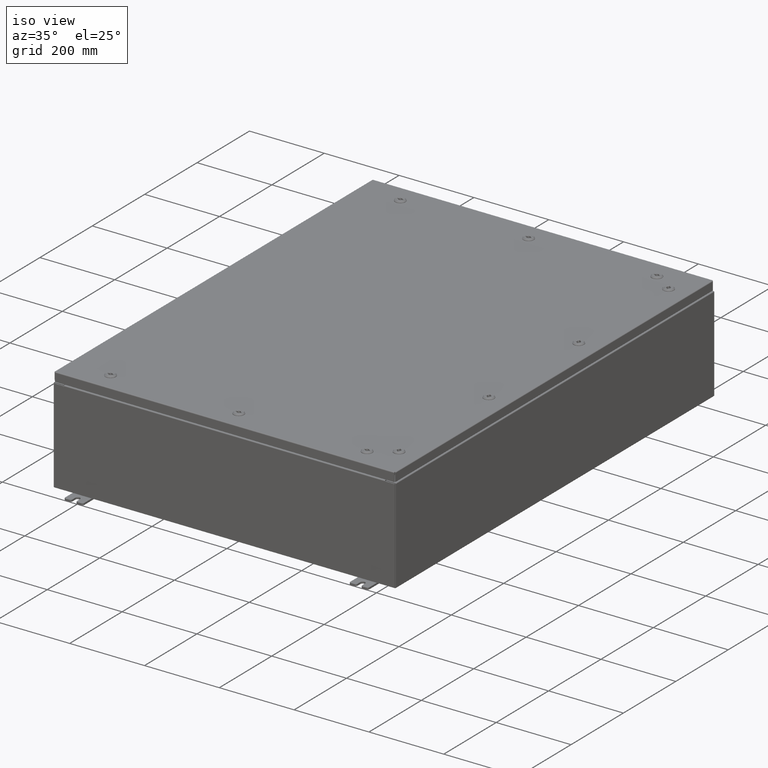
[diagram: clean part render]
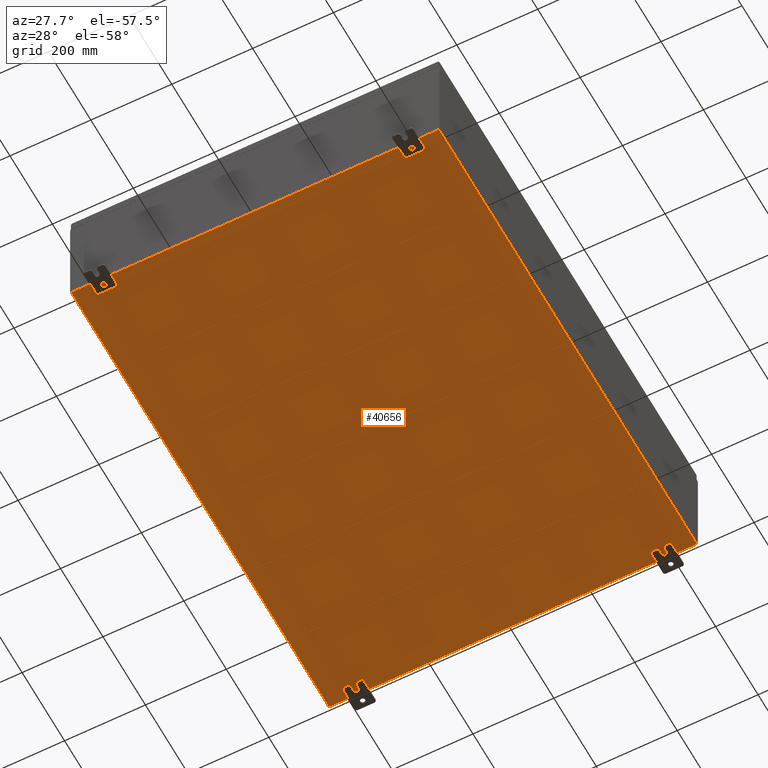
[diagram: tour spotlight — one face highlighted and labeled with its STEP entity id]
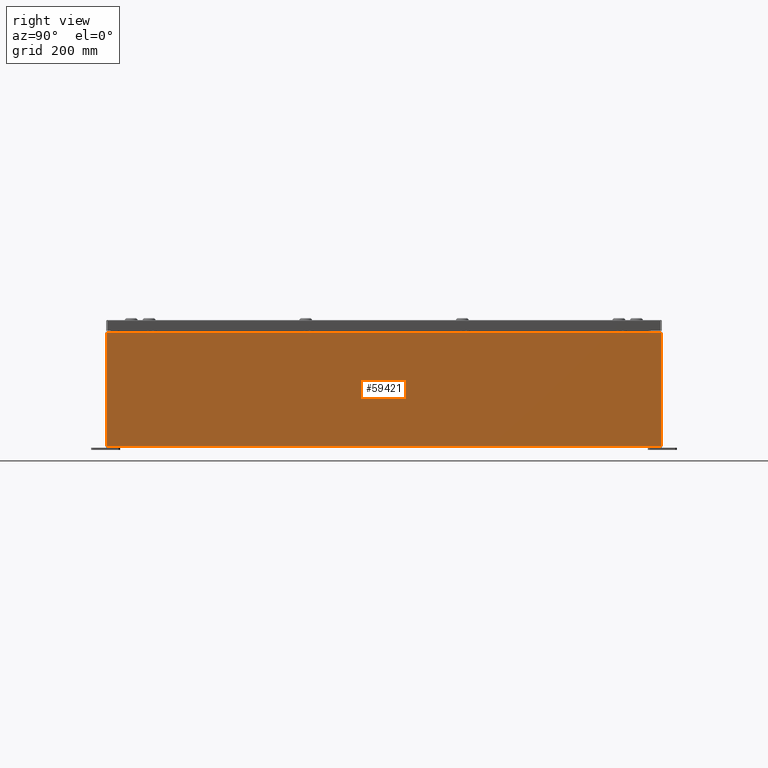
[diagram: tour spotlight — one face highlighted and labeled with its STEP entity id]
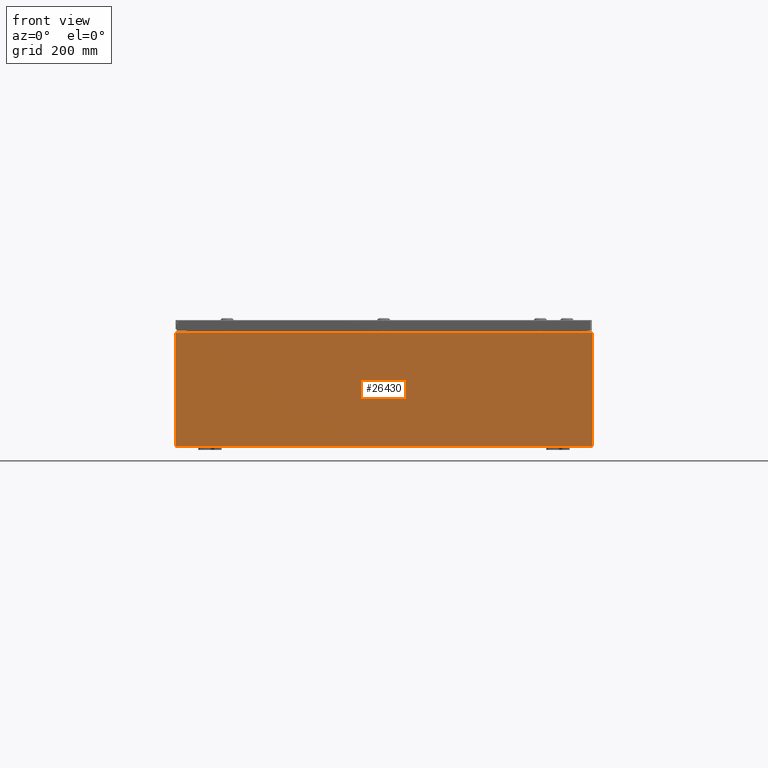
[diagram: tour spotlight — one face highlighted and labeled with its STEP entity id]
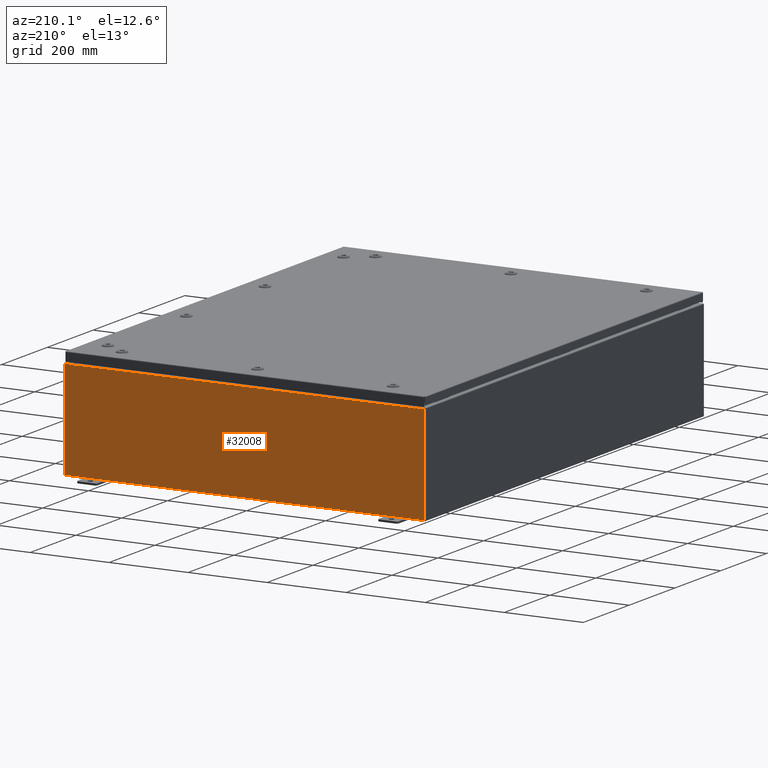
[diagram: tour spotlight — one face highlighted and labeled with its STEP entity id]
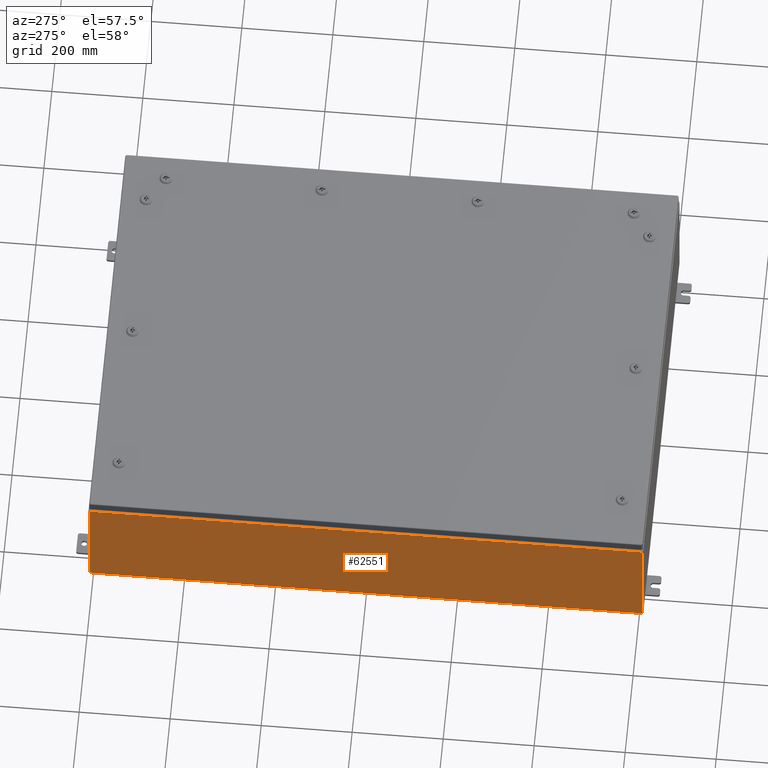
[diagram: tour spotlight — one face highlighted and labeled with its STEP entity id]
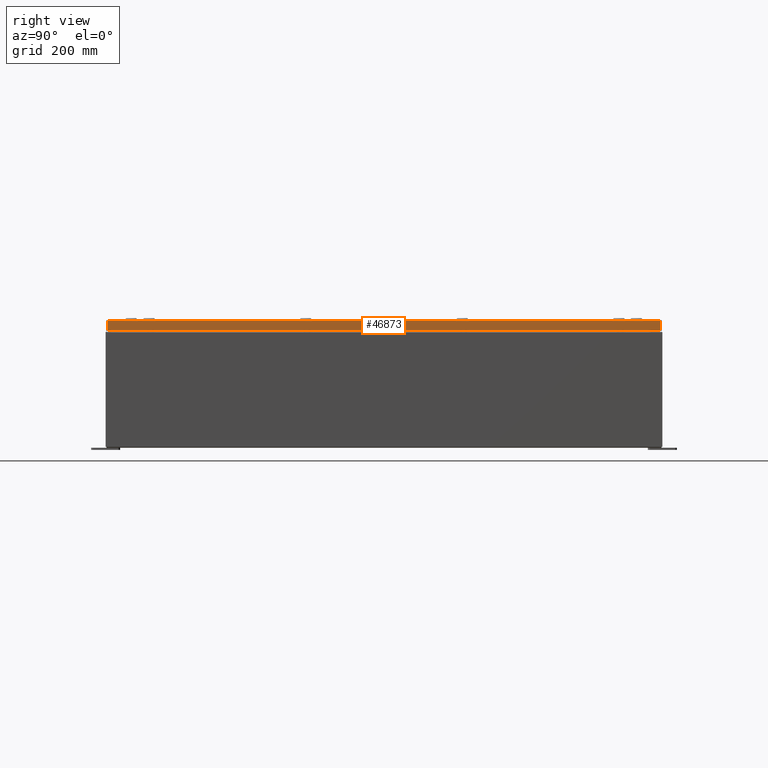
[diagram: tour spotlight — one face highlighted and labeled with its STEP entity id]
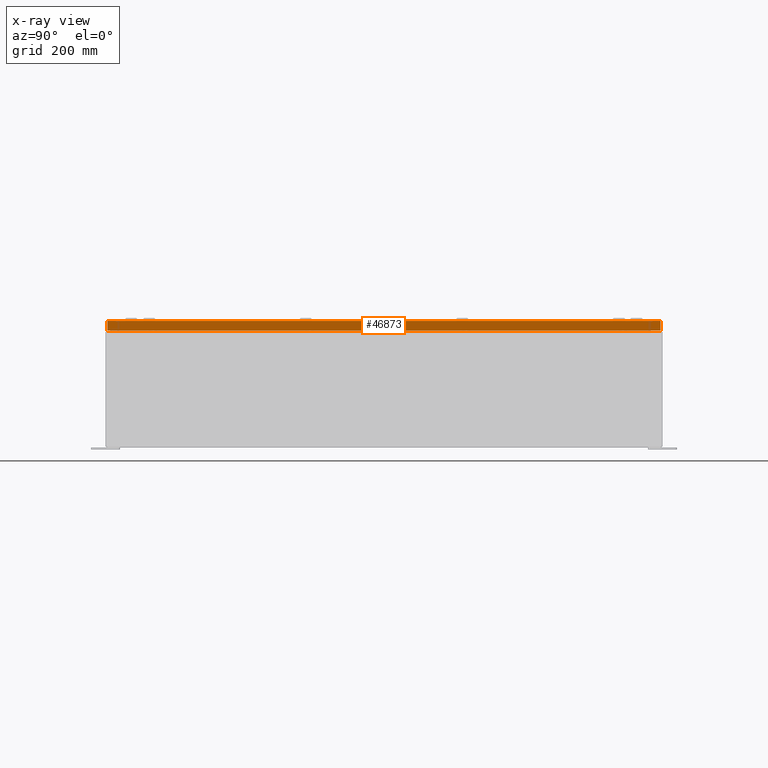
[diagram: x-ray of the same camera — body ghosted, this tour face saturated]
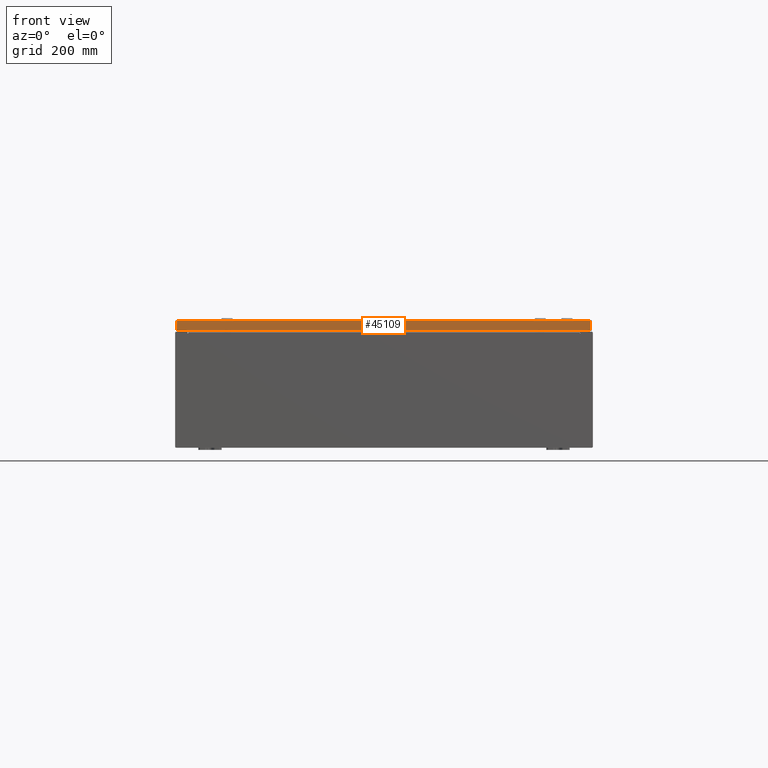
[diagram: tour spotlight — one face highlighted and labeled with its STEP entity id]
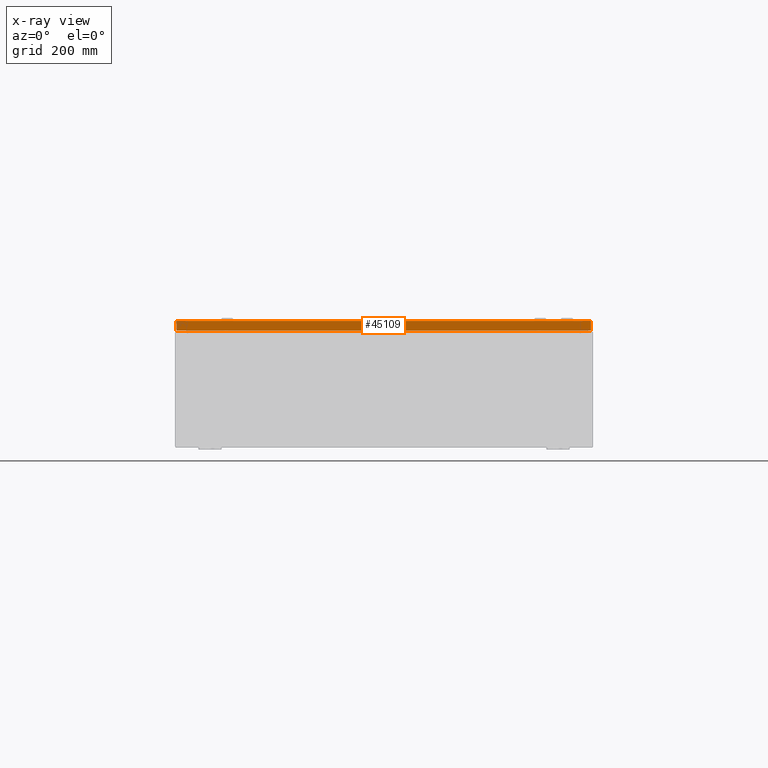
[diagram: x-ray of the same camera — body ghosted, this tour face saturated]
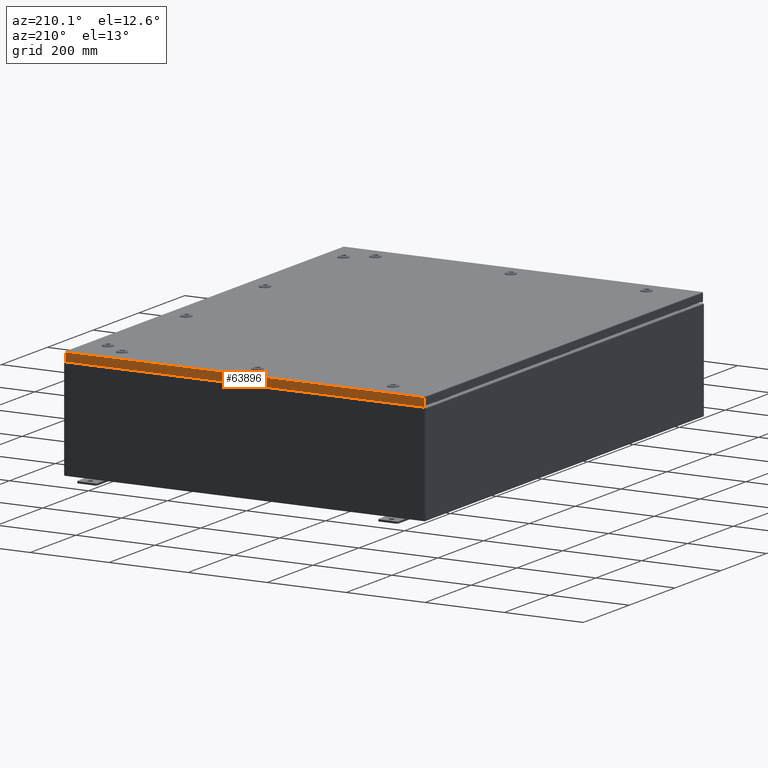
[diagram: tour spotlight — one face highlighted and labeled with its STEP entity id]
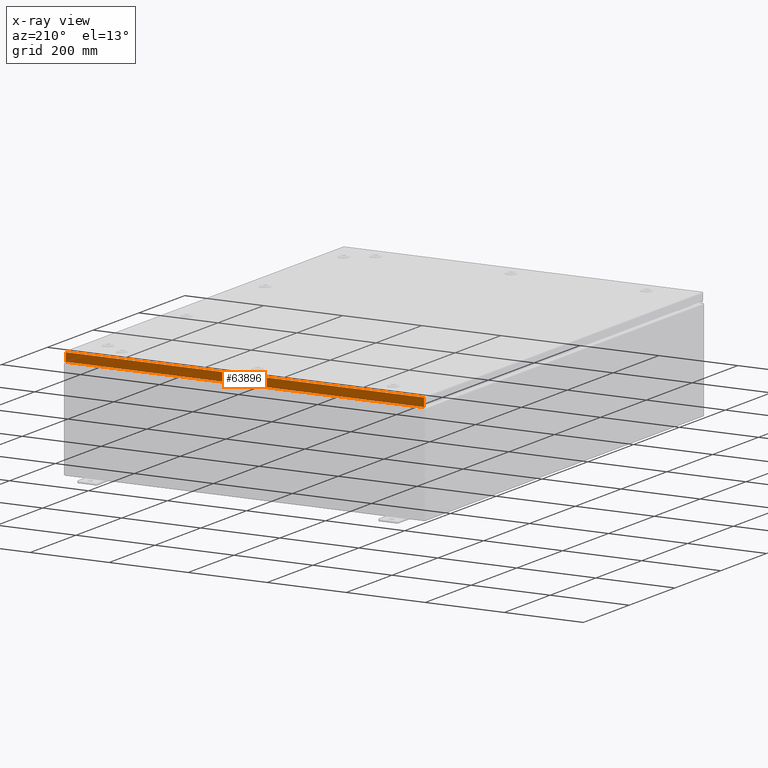
[diagram: x-ray of the same camera — body ghosted, this tour face saturated]
A machine part: a face-by-face anatomy tour. The part has 9060 B-rep faces; the first image is the clean iso view, then the 8 largest visible faces are spotlighted one at a time (largest first), each with its STEP entity span.

Face 1 — auxiliary view, entity #40656. In plain terms, the highlighted planar face has unit normal (0, 0, -1).
Definition (entity closure, byte-faithful):
#1111 = VECTOR ( 'NONE', #6582, 39.37007874015748100 ) ;
#1706 = FACE_OUTER_BOUND ( 'NONE', #14496, .T. ) ;
#3148 = LINE ( 'NONE', #16396, #29793 ) ;
#5612 = CARTESIAN_POINT ( 'NONE',  ( 17.91229999999999500, 23.92529999999998900, -0.07469999999999688000 ) ) ;
#5838 = DIRECTION ( 'NONE',  ( -1.000000000000000000, 0.0000000000000000000, -0.0000000000000000000 ) ) ;
#6582 = DIRECTION ( 'NONE',  ( -0.0000000000000000000, 1.000000000000000000, -0.0000000000000000000 ) ) ;
#7980 = CARTESIAN_POINT ( 'NONE',  ( 17.91229999999999500, -23.92530000000000000, -0.07470000000000000300 ) ) ;
#8897 = VERTEX_POINT ( 'NONE', #49097 ) ;
#10481 = CARTESIAN_POINT ( 'NONE',  ( -18.00000000000000400, 23.92530000000000000, -0.07470000000000000300 ) ) ;
#11040 = DIRECTION ( 'NONE',  ( 1.000000000000000000, 1.214154663850783700E-016, 0.0000000000000000000 ) ) ;
#14340 = EDGE_CURVE ( 'NONE', #47152, #51415, #43530, .T. ) ;
#14496 = EDGE_LOOP ( 'NONE', ( #36754, #41674, #58539, #53055 ) ) ;
#16396 = CARTESIAN_POINT ( 'NONE',  ( -18.00000000000000400, -23.92530000000000400, -0.07470000000000000300 ) ) ;
#26972 = CARTESIAN_POINT ( 'NONE',  ( 0.0000000000000000000, 0.0000000000000000000, -0.07470000000000000300 ) ) ;
#29550 = LINE ( 'NONE', #10481, #56057 ) ;
#29793 = VECTOR ( 'NONE', #11040, 39.37007874015748100 ) ;
#36754 = ORIENTED_EDGE ( 'NONE', *, *, #40506, .F. ) ;
#37684 = DIRECTION ( 'NONE',  ( 0.0000000000000000000, 0.0000000000000000000, -1.000000000000000000 ) ) ;
#38092 = VECTOR ( 'NONE', #42801, 39.37007874015748100 ) ;
#40506 = EDGE_CURVE ( 'NONE', #47152, #48297, #3148, .T. ) ;
#40656 = ADVANCED_FACE ( 'NONE', ( #1706 ), #42789, .T. ) ;
#41674 = ORIENTED_EDGE ( 'NONE', *, *, #14340, .T. ) ;
#41704 = EDGE_CURVE ( 'NONE', #8897, #48297, #52164, .T. ) ;
#42323 = DIRECTION ( 'NONE',  ( -1.000000000000000000, -0.0000000000000000000, -0.0000000000000000000 ) ) ;
#42789 = PLANE ( 'NONE',  #51721 ) ;
#42801 = DIRECTION ( 'NONE',  ( -0.0000000000000000000, -1.000000000000000000, -8.208677865577646300E-017 ) ) ;
#43167 = CARTESIAN_POINT ( 'NONE',  ( -17.91230000000000500, 23.92529999999998900, -0.07470000000000000300 ) ) ;
#43530 = LINE ( 'NONE', #43762, #1111 ) ;
#43762 = CARTESIAN_POINT ( 'NONE',  ( -17.91230000000000500, -23.92529999999998900, -0.07469999999999994700 ) ) ;
#46683 = CARTESIAN_POINT ( 'NONE',  ( -17.91230000000000500, -23.92529999999998600, -0.07469999999999994700 ) ) ;
#47152 = VERTEX_POINT ( 'NONE', #46683 ) ;
#48297 = VERTEX_POINT ( 'NONE', #7980 ) ;
#49097 = CARTESIAN_POINT ( 'NONE',  ( 17.91229999999999500, 23.92529999999998600, -0.07469999999999688000 ) ) ;
#51415 = VERTEX_POINT ( 'NONE', #43167 ) ;
#51721 = AXIS2_PLACEMENT_3D ( 'NONE', #26972, #37684, #5838 ) ;
#52164 = LINE ( 'NONE', #5612, #38092 ) ;
#53055 = ORIENTED_EDGE ( 'NONE', *, *, #41704, .T. ) ;
#56057 = VECTOR ( 'NONE', #42323, 39.37007874015748100 ) ;
#58539 = ORIENTED_EDGE ( 'NONE', *, *, #64222, .F. ) ;
#64222 = EDGE_CURVE ( 'NONE', #8897, #51415, #29550, .T. ) ;

Face 2 — right view, entity #59421. In plain terms, the highlighted planar face has unit normal (-1, 0, 0).
Definition (entity closure, byte-faithful):
#432 = CARTESIAN_POINT ( 'NONE',  ( 17.99999999999999600, 23.92529999999998900, -6.367630515150754200E-014 ) ) ;
#446 = CARTESIAN_POINT ( 'NONE',  ( 18.00000000000003200, 23.92529999999998900, 9.837599999999994800 ) ) ;
#5017 = DIRECTION ( 'NONE',  ( -1.000000000000000000, 0.0000000000000000000, 3.523082860860887800E-015 ) ) ;
#5782 = ORIENTED_EDGE ( 'NONE', *, *, #22244, .F. ) ;
#5786 = DIRECTION ( 'NONE',  ( 3.523082860860888200E-015, 0.0000000000000000000, 1.000000000000000000 ) ) ;
#5803 = DIRECTION ( 'NONE',  ( -0.0000000000000000000, -1.000000000000000000, -0.0000000000000000000 ) ) ;
#8133 = CARTESIAN_POINT ( 'NONE',  ( 17.99999999999999600, -23.92529999999998900, -6.367630515150754200E-014 ) ) ;
#9129 = EDGE_CURVE ( 'NONE', #22738, #42605, #56951, .T. ) ;
#11250 = DIRECTION ( 'NONE',  ( -1.609096119163526300E-031, -1.000000000000000000, -4.567295697298285000E-017 ) ) ;
#11900 = CARTESIAN_POINT ( 'NONE',  ( 18.00000000000003200, 23.92529999999998600, 9.837599999999994800 ) ) ;
#15425 = LINE ( 'NONE', #446, #27891 ) ;
#16907 = VECTOR ( 'NONE', #5786, 39.37007874015748100 ) ;
#22244 = EDGE_CURVE ( 'NONE', #59783, #42605, #30653, .T. ) ;
#22618 = VERTEX_POINT ( 'NONE', #11900 ) ;
#22738 = VERTEX_POINT ( 'NONE', #60140 ) ;
#24314 = ORIENTED_EDGE ( 'NONE', *, *, #47336, .T. ) ;
#25629 = EDGE_LOOP ( 'NONE', ( #49521, #32056, #5782, #24314 ) ) ;
#27891 = VECTOR ( 'NONE', #5803, 39.37007874015748100 ) ;
#28757 = VECTOR ( 'NONE', #34663, 39.37007874015748100 ) ;
#28979 = VECTOR ( 'NONE', #11250, 39.37007874015748100 ) ;
#30653 = LINE ( 'NONE', #37755, #28979 ) ;
#32056 = ORIENTED_EDGE ( 'NONE', *, *, #9129, .T. ) ;
#34663 = DIRECTION ( 'NONE',  ( -3.523082860860888200E-015, 0.0000000000000000000, -1.000000000000000000 ) ) ;
#37755 = CARTESIAN_POINT ( 'NONE',  ( 17.99999999999999600, -23.92529999999998900, 0.01299999999999984700 ) ) ;
#40091 = CARTESIAN_POINT ( 'NONE',  ( 17.99999999999999600, 23.92529999999998600, 0.01300000000000203200 ) ) ;
#40643 = FACE_OUTER_BOUND ( 'NONE', #25629, .T. ) ;
#42213 = DIRECTION ( 'NONE',  ( 3.523082860860887800E-015, 0.0000000000000000000, 1.000000000000000000 ) ) ;
#42605 = VERTEX_POINT ( 'NONE', #57198 ) ;
#44859 = EDGE_CURVE ( 'NONE', #22618, #22738, #15425, .T. ) ;
#47336 = EDGE_CURVE ( 'NONE', #59783, #22618, #59206, .T. ) ;
#49521 = ORIENTED_EDGE ( 'NONE', *, *, #44859, .T. ) ;
#52596 = CARTESIAN_POINT ( 'NONE',  ( 17.99999999999999600, 0.0000000000000000000, -6.367630515150754200E-014 ) ) ;
#56951 = LINE ( 'NONE', #8133, #28757 ) ;
#57198 = CARTESIAN_POINT ( 'NONE',  ( 17.99999999999999600, -23.92529999999998900, 0.01299999999999897400 ) ) ;
#59206 = LINE ( 'NONE', #432, #16907 ) ;
#59421 = ADVANCED_FACE ( 'NONE', ( #40643 ), #68635, .F. ) ;
#59783 = VERTEX_POINT ( 'NONE', #40091 ) ;
#60140 = CARTESIAN_POINT ( 'NONE',  ( 18.00000000000003200, -23.92529999999998900, 9.837600000000001900 ) ) ;
#60697 = AXIS2_PLACEMENT_3D ( 'NONE', #52596, #5017, #42213 ) ;
#68635 = PLANE ( 'NONE',  #60697 ) ;

Face 3 — front view, entity #26430. In plain terms, the highlighted planar face has unit normal (-0, 1, -0).
Definition (entity closure, byte-faithful):
#336 = CARTESIAN_POINT ( 'NONE',  ( 16.90587500000000200, 0.0000000000000000000, 4.874950000000000100 ) ) ;
#832 = CARTESIAN_POINT ( 'NONE',  ( -16.88720000000000000, -0.0000000000000000000, 4.874950000000000100 ) ) ;
#887 = DIRECTION ( 'NONE',  ( 0.0000000000000000000, -1.000000000000000000, 0.0000000000000000000 ) ) ;
#1954 = EDGE_CURVE ( 'NONE', #29519, #15847, #18357, .T. ) ;
#2367 = VERTEX_POINT ( 'NONE', #48772 ) ;
#4550 = ORIENTED_EDGE ( 'NONE', *, *, #61374, .F. ) ;
#5684 = DIRECTION ( 'NONE',  ( 0.0000000000000000000, 0.0000000000000000000, -1.000000000000000000 ) ) ;
#6086 = ORIENTED_EDGE ( 'NONE', *, *, #39529, .T. ) ;
#6960 = CARTESIAN_POINT ( 'NONE',  ( 16.92455000000000000, 0.0000000000000000000, 4.874950000000000100 ) ) ;
#7324 = DIRECTION ( 'NONE',  ( -8.681145560800009800E-014, 0.0000000000000000000, -1.000000000000000000 ) ) ;
#7888 = EDGE_CURVE ( 'NONE', #29519, #38146, #40488, .T. ) ;
#8886 = CARTESIAN_POINT ( 'NONE',  ( 16.88720000000000000, 0.0000000000000000000, 0.0000000000000000000 ) ) ;
#10712 = ORIENTED_EDGE ( 'NONE', *, *, #67639, .F. ) ;
#13207 = ORIENTED_EDGE ( 'NONE', *, *, #1954, .F. ) ;
#13834 = LINE ( 'NONE', #20220, #68623 ) ;
#14241 = DIRECTION ( 'NONE',  ( 0.0000000000000000000, 0.0000000000000000000, 1.000000000000000000 ) ) ;
#14982 = ORIENTED_EDGE ( 'NONE', *, *, #51786, .F. ) ;
#15847 = VERTEX_POINT ( 'NONE', #832 ) ;
#16230 = ORIENTED_EDGE ( 'NONE', *, *, #24900, .F. ) ;
#16291 = CARTESIAN_POINT ( 'NONE',  ( -16.88720000000000000, -7.171100983368691200E-016, 4.912300000000000100 ) ) ;
#16668 = VECTOR ( 'NONE', #26771, 39.37007874015748100 ) ;
#16936 = PLANE ( 'NONE',  #22778 ) ;
#18357 = LINE ( 'NONE', #21659, #16668 ) ;
#20220 = CARTESIAN_POINT ( 'NONE',  ( -16.92454999999999600, -0.0000000000000000000, 0.0000000000000000000 ) ) ;
#21659 = CARTESIAN_POINT ( 'NONE',  ( -16.88720000000000000, -0.0000000000000000000, 0.0000000000000000000 ) ) ;
#22690 = DIRECTION ( 'NONE',  ( 0.0000000000000000000, 0.0000000000000000000, -1.000000000000000000 ) ) ;
#22778 = AXIS2_PLACEMENT_3D ( 'NONE', #43420, #887, #54036 ) ;
#23683 = VERTEX_POINT ( 'NONE', #34156 ) ;
#24316 = EDGE_CURVE ( 'NONE', #50382, #2367, #62042, .T. ) ;
#24764 = DIRECTION ( 'NONE',  ( 1.000000000000000000, 0.0000000000000000000, 0.0000000000000000000 ) ) ;
#24900 = EDGE_CURVE ( 'NONE', #23683, #38277, #13834, .T. ) ;
#25420 = CARTESIAN_POINT ( 'NONE',  ( 17.92530000000000000, 0.0000000000000000000, 4.925300000000000000 ) ) ;
#25490 = CARTESIAN_POINT ( 'NONE',  ( -16.92454999999999600, 0.0000000000000000000, 4.925300000000000000 ) ) ;
#25578 = DIRECTION ( 'NONE',  ( 0.0000000000000000000, 0.0000000000000000000, 1.000000000000000000 ) ) ;
#25709 = EDGE_CURVE ( 'NONE', #64423, #64946, #32901, .T. ) ;
#25935 = VECTOR ( 'NONE', #41415, 39.37007874015748100 ) ;
#26430 = ADVANCED_FACE ( 'NONE', ( #64345 ), #16936, .F. ) ;
#26771 = DIRECTION ( 'NONE',  ( 0.0000000000000000000, 0.0000000000000000000, -1.000000000000000000 ) ) ;
#27149 = VECTOR ( 'NONE', #24764, 39.37007874015748100 ) ;
#27589 = LINE ( 'NONE', #36096, #25935 ) ;
#28277 = VERTEX_POINT ( 'NONE', #63633 ) ;
#28586 = AXIS2_PLACEMENT_3D ( 'NONE', #30476, #67557, #35817 ) ;
#29519 = VERTEX_POINT ( 'NONE', #67930 ) ;
#30342 = CARTESIAN_POINT ( 'NONE',  ( -17.92530000000000000, 0.0000000000000000000, 4.925300000000000000 ) ) ;
#30476 = CARTESIAN_POINT ( 'NONE',  ( -16.90587499999999800, 0.0000000000000000000, 4.874950000000000100 ) ) ;
#30522 = VECTOR ( 'NONE', #65991, 39.37007874015748100 ) ;
#30777 = EDGE_LOOP ( 'NONE', ( #16230, #10712, #13207, #61574, #14982, #67652, #4550, #6086, #51633, #30850, #60201, #48288 ) ) ;
#30850 = ORIENTED_EDGE ( 'NONE', *, *, #24316, .T. ) ;
#32427 = EDGE_CURVE ( 'NONE', #59650, #38277, #44635, .T. ) ;
#32584 = EDGE_CURVE ( 'NONE', #2367, #59650, #52031, .T. ) ;
#32594 = CIRCLE ( 'NONE', #28586, 0.01867499999999949400 ) ;
#32901 = CIRCLE ( 'NONE', #55178, 0.01867499999999949400 ) ;
#33416 = CARTESIAN_POINT ( 'NONE',  ( 17.92530000000000000, 0.0000000000000000000, 4.925300000000000000 ) ) ;
#34156 = CARTESIAN_POINT ( 'NONE',  ( -16.92454999999999600, 0.0000000000000000000, 4.874950000000000100 ) ) ;
#34735 = VECTOR ( 'NONE', #7324, 39.37007874015748100 ) ;
#35362 = LINE ( 'NONE', #33416, #63517 ) ;
#35817 = DIRECTION ( 'NONE',  ( 0.0000000000000000000, 0.0000000000000000000, -1.000000000000000000 ) ) ;
#36096 = CARTESIAN_POINT ( 'NONE',  ( -17.92530000000000000, 0.0000000000000000000, 4.925300000000000000 ) ) ;
#36203 = EDGE_CURVE ( 'NONE', #68779, #50382, #35362, .T. ) ;
#37537 = DIRECTION ( 'NONE',  ( -0.0000000000000000000, 1.000000000000000000, -0.0000000000000000000 ) ) ;
#37968 = VECTOR ( 'NONE', #57409, 39.37007874015748100 ) ;
#38146 = VERTEX_POINT ( 'NONE', #40361 ) ;
#38277 = VERTEX_POINT ( 'NONE', #25490 ) ;
#38808 = VECTOR ( 'NONE', #53394, 39.37007874015748100 ) ;
#39109 = CARTESIAN_POINT ( 'NONE',  ( -17.92530000000000000, 0.0000000000000000000, -4.925300000000000000 ) ) ;
#39529 = EDGE_CURVE ( 'NONE', #28277, #68779, #27589, .T. ) ;
#40361 = CARTESIAN_POINT ( 'NONE',  ( 16.88720000000000000, 0.0000000000000000000, 4.912300000000000100 ) ) ;
#40488 = LINE ( 'NONE', #16291, #38808 ) ;
#41415 = DIRECTION ( 'NONE',  ( 1.000000000000000000, 0.0000000000000000000, 0.0000000000000000000 ) ) ;
#43420 = CARTESIAN_POINT ( 'NONE',  ( 0.0000000000000000000, 0.0000000000000000000, 0.0000000000000000000 ) ) ;
#44635 = LINE ( 'NONE', #30342, #27149 ) ;
#48132 = LINE ( 'NONE', #8886, #60575 ) ;
#48288 = ORIENTED_EDGE ( 'NONE', *, *, #32427, .T. ) ;
#48772 = CARTESIAN_POINT ( 'NONE',  ( -17.92530000000000000, 0.0000000000000000000, -4.925300000000000000 ) ) ;
#50382 = VERTEX_POINT ( 'NONE', #54585 ) ;
#51633 = ORIENTED_EDGE ( 'NONE', *, *, #36203, .T. ) ;
#51786 = EDGE_CURVE ( 'NONE', #64946, #38146, #48132, .T. ) ;
#51841 = CARTESIAN_POINT ( 'NONE',  ( -17.92530000000000000, 0.0000000000000000000, 4.925300000000000000 ) ) ;
#52031 = LINE ( 'NONE', #51841, #37968 ) ;
#53394 = DIRECTION ( 'NONE',  ( 1.000000000000000000, 0.0000000000000000000, 0.0000000000000000000 ) ) ;
#54036 = DIRECTION ( 'NONE',  ( 0.0000000000000000000, -0.0000000000000000000, -1.000000000000000000 ) ) ;
#54585 = CARTESIAN_POINT ( 'NONE',  ( 17.92530000000000000, 0.0000000000000000000, -4.925300000000000000 ) ) ;
#55178 = AXIS2_PLACEMENT_3D ( 'NONE', #336, #37537, #5684 ) ;
#55920 = CARTESIAN_POINT ( 'NONE',  ( 16.88720000000000000, 0.0000000000000000000, 4.874950000000000100 ) ) ;
#57409 = DIRECTION ( 'NONE',  ( -0.0000000000000000000, -0.0000000000000000000, 1.000000000000000000 ) ) ;
#59537 = LINE ( 'NONE', #65828, #34735 ) ;
#59650 = VERTEX_POINT ( 'NONE', #64895 ) ;
#60201 = ORIENTED_EDGE ( 'NONE', *, *, #32584, .T. ) ;
#60575 = VECTOR ( 'NONE', #14241, 39.37007874015748100 ) ;
#61374 = EDGE_CURVE ( 'NONE', #28277, #64423, #59537, .T. ) ;
#61574 = ORIENTED_EDGE ( 'NONE', *, *, #7888, .T. ) ;
#62042 = LINE ( 'NONE', #39109, #30522 ) ;
#63517 = VECTOR ( 'NONE', #22690, 39.37007874015748100 ) ;
#63633 = CARTESIAN_POINT ( 'NONE',  ( 16.92455000000000000, 0.0000000000000000000, 4.925300000000000000 ) ) ;
#64345 = FACE_OUTER_BOUND ( 'NONE', #30777, .T. ) ;
#64423 = VERTEX_POINT ( 'NONE', #6960 ) ;
#64895 = CARTESIAN_POINT ( 'NONE',  ( -17.92530000000000000, 0.0000000000000000000, 4.925300000000000000 ) ) ;
#64946 = VERTEX_POINT ( 'NONE', #55920 ) ;
#65828 = CARTESIAN_POINT ( 'NONE',  ( 16.92454999999957700, -0.0000000000000000000, -1.469244821010341400E-012 ) ) ;
#65991 = DIRECTION ( 'NONE',  ( -1.000000000000000000, -0.0000000000000000000, -0.0000000000000000000 ) ) ;
#67557 = DIRECTION ( 'NONE',  ( -0.0000000000000000000, 1.000000000000000000, -0.0000000000000000000 ) ) ;
#67639 = EDGE_CURVE ( 'NONE', #15847, #23683, #32594, .T. ) ;
#67652 = ORIENTED_EDGE ( 'NONE', *, *, #25709, .F. ) ;
#67930 = CARTESIAN_POINT ( 'NONE',  ( -16.88720000000000000, -7.171100983368691200E-016, 4.912300000000000100 ) ) ;
#68623 = VECTOR ( 'NONE', #25578, 39.37007874015748100 ) ;
#68779 = VERTEX_POINT ( 'NONE', #25420 ) ;

Face 4 — auxiliary view, entity #32008. In plain terms, the highlighted planar face has unit normal (0, -1, 0).
Definition (entity closure, byte-faithful):
#1583 = CARTESIAN_POINT ( 'NONE',  ( -16.92454999999999600, -0.0000000000000000000, 0.0000000000000000000 ) ) ;
#1679 = DIRECTION ( 'NONE',  ( -0.0000000000000000000, 1.000000000000000000, -0.0000000000000000000 ) ) ;
#1898 = ORIENTED_EDGE ( 'NONE', *, *, #24215, .F. ) ;
#2043 = CARTESIAN_POINT ( 'NONE',  ( 16.92455000000000000, 0.0000000000000000000, 4.874950000000000100 ) ) ;
#2345 = VECTOR ( 'NONE', #9593, 39.37007874015748100 ) ;
#2618 = EDGE_CURVE ( 'NONE', #58212, #20878, #37395, .T. ) ;
#2758 = EDGE_CURVE ( 'NONE', #45042, #19919, #62277, .T. ) ;
#3199 = DIRECTION ( 'NONE',  ( 0.0000000000000000000, 0.0000000000000000000, -1.000000000000000000 ) ) ;
#3591 = ORIENTED_EDGE ( 'NONE', *, *, #2618, .T. ) ;
#4011 = LINE ( 'NONE', #57185, #2345 ) ;
#4254 = VERTEX_POINT ( 'NONE', #21648 ) ;
#4945 = EDGE_CURVE ( 'NONE', #52810, #20078, #47156, .T. ) ;
#5774 = VECTOR ( 'NONE', #56634, 39.37007874015748100 ) ;
#7196 = CIRCLE ( 'NONE', #22435, 0.01867499999999949400 ) ;
#7489 = LINE ( 'NONE', #45985, #16637 ) ;
#8665 = ORIENTED_EDGE ( 'NONE', *, *, #16879, .F. ) ;
#9593 = DIRECTION ( 'NONE',  ( 1.000000000000000000, 0.0000000000000000000, 0.0000000000000000000 ) ) ;
#9683 = ORIENTED_EDGE ( 'NONE', *, *, #2758, .T. ) ;
#10474 = CARTESIAN_POINT ( 'NONE',  ( -17.92530000000000000, 0.0000000000000000000, 4.925300000000000000 ) ) ;
#10656 = CARTESIAN_POINT ( 'NONE',  ( 16.92454999999957700, -0.0000000000000000000, -1.469244821010341400E-012 ) ) ;
#10951 = VECTOR ( 'NONE', #55940, 39.37007874015748100 ) ;
#11836 = CARTESIAN_POINT ( 'NONE',  ( 16.88720000000000000, 0.0000000000000000000, 4.912300000000000100 ) ) ;
#12849 = VERTEX_POINT ( 'NONE', #66739 ) ;
#13133 = CARTESIAN_POINT ( 'NONE',  ( -16.88720000000000000, -7.171100983368691200E-016, 4.912300000000000100 ) ) ;
#13476 = CARTESIAN_POINT ( 'NONE',  ( 16.88720000000000000, 0.0000000000000000000, 0.0000000000000000000 ) ) ;
#13798 = LINE ( 'NONE', #26017, #42044 ) ;
#14758 = ORIENTED_EDGE ( 'NONE', *, *, #41406, .T. ) ;
#15546 = ORIENTED_EDGE ( 'NONE', *, *, #31594, .F. ) ;
#16006 = DIRECTION ( 'NONE',  ( -8.681145560800009800E-014, 0.0000000000000000000, -1.000000000000000000 ) ) ;
#16637 = VECTOR ( 'NONE', #41567, 39.37007874015748100 ) ;
#16873 = DIRECTION ( 'NONE',  ( 0.0000000000000000000, -1.000000000000000000, 0.0000000000000000000 ) ) ;
#16879 = EDGE_CURVE ( 'NONE', #20078, #63734, #40157, .T. ) ;
#18849 = EDGE_LOOP ( 'NONE', ( #15546, #1898, #19382, #9683, #47879, #8665, #27725, #14758, #64515, #37393, #3591, #23570 ) ) ;
#18863 = DIRECTION ( 'NONE',  ( -0.0000000000000000000, -0.0000000000000000000, 1.000000000000000000 ) ) ;
#19382 = ORIENTED_EDGE ( 'NONE', *, *, #35142, .F. ) ;
#19919 = VERTEX_POINT ( 'NONE', #11836 ) ;
#20078 = VERTEX_POINT ( 'NONE', #2043 ) ;
#20878 = VERTEX_POINT ( 'NONE', #10474 ) ;
#21648 = CARTESIAN_POINT ( 'NONE',  ( -16.92454999999999600, 0.0000000000000000000, 4.874950000000000100 ) ) ;
#22435 = AXIS2_PLACEMENT_3D ( 'NONE', #33558, #1679, #38871 ) ;
#22648 = AXIS2_PLACEMENT_3D ( 'NONE', #66818, #35078, #3199 ) ;
#23570 = ORIENTED_EDGE ( 'NONE', *, *, #41532, .T. ) ;
#23896 = CARTESIAN_POINT ( 'NONE',  ( -16.92454999999999600, 0.0000000000000000000, 4.925300000000000000 ) ) ;
#23990 = VERTEX_POINT ( 'NONE', #46826 ) ;
#24215 = EDGE_CURVE ( 'NONE', #23990, #4254, #7196, .T. ) ;
#26017 = CARTESIAN_POINT ( 'NONE',  ( -16.88720000000000000, -0.0000000000000000000, 0.0000000000000000000 ) ) ;
#27215 = VECTOR ( 'NONE', #33468, 39.37007874015748100 ) ;
#27725 = ORIENTED_EDGE ( 'NONE', *, *, #4945, .F. ) ;
#28788 = EDGE_CURVE ( 'NONE', #66024, #58212, #7489, .T. ) ;
#31088 = DIRECTION ( 'NONE',  ( 0.0000000000000000000, 0.0000000000000000000, -1.000000000000000000 ) ) ;
#31594 = EDGE_CURVE ( 'NONE', #4254, #49699, #58752, .T. ) ;
#32008 = ADVANCED_FACE ( 'NONE', ( #40517 ), #48645, .F. ) ;
#32106 = VECTOR ( 'NONE', #31088, 39.37007874015748100 ) ;
#32683 = CARTESIAN_POINT ( 'NONE',  ( 0.0000000000000000000, 0.0000000000000000000, 0.0000000000000000000 ) ) ;
#33078 = VECTOR ( 'NONE', #16006, 39.37007874015748100 ) ;
#33468 = DIRECTION ( 'NONE',  ( 0.0000000000000000000, 0.0000000000000000000, 1.000000000000000000 ) ) ;
#33558 = CARTESIAN_POINT ( 'NONE',  ( -16.90587499999999800, 0.0000000000000000000, 4.874950000000000100 ) ) ;
#35078 = DIRECTION ( 'NONE',  ( -0.0000000000000000000, 1.000000000000000000, -0.0000000000000000000 ) ) ;
#35142 = EDGE_CURVE ( 'NONE', #45042, #23990, #13798, .T. ) ;
#35446 = DIRECTION ( 'NONE',  ( 1.000000000000000000, 0.0000000000000000000, 0.0000000000000000000 ) ) ;
#37393 = ORIENTED_EDGE ( 'NONE', *, *, #28788, .T. ) ;
#37395 = LINE ( 'NONE', #50622, #65601 ) ;
#38871 = DIRECTION ( 'NONE',  ( 0.0000000000000000000, 0.0000000000000000000, -1.000000000000000000 ) ) ;
#40157 = CIRCLE ( 'NONE', #22648, 0.01867499999999949400 ) ;
#40517 = FACE_OUTER_BOUND ( 'NONE', #18849, .T. ) ;
#41406 = EDGE_CURVE ( 'NONE', #52810, #12849, #46408, .T. ) ;
#41532 = EDGE_CURVE ( 'NONE', #20878, #49699, #4011, .T. ) ;
#41567 = DIRECTION ( 'NONE',  ( -1.000000000000000000, -0.0000000000000000000, -0.0000000000000000000 ) ) ;
#42044 = VECTOR ( 'NONE', #63127, 39.37007874015748100 ) ;
#44241 = EDGE_CURVE ( 'NONE', #12849, #66024, #47850, .T. ) ;
#45042 = VERTEX_POINT ( 'NONE', #13133 ) ;
#45602 = CARTESIAN_POINT ( 'NONE',  ( 16.92455000000000000, 0.0000000000000000000, 4.925300000000000000 ) ) ;
#45985 = CARTESIAN_POINT ( 'NONE',  ( -17.92530000000000000, 0.0000000000000000000, -4.925300000000000000 ) ) ;
#46408 = LINE ( 'NONE', #67197, #53033 ) ;
#46826 = CARTESIAN_POINT ( 'NONE',  ( -16.88720000000000000, -0.0000000000000000000, 4.874950000000000100 ) ) ;
#47156 = LINE ( 'NONE', #10656, #33078 ) ;
#47850 = LINE ( 'NONE', #68176, #32106 ) ;
#47879 = ORIENTED_EDGE ( 'NONE', *, *, #49127, .F. ) ;
#48645 = PLANE ( 'NONE',  #56334 ) ;
#49048 = CARTESIAN_POINT ( 'NONE',  ( 16.88720000000000000, 0.0000000000000000000, 4.874950000000000100 ) ) ;
#49127 = EDGE_CURVE ( 'NONE', #63734, #19919, #49993, .T. ) ;
#49699 = VERTEX_POINT ( 'NONE', #23896 ) ;
#49993 = LINE ( 'NONE', #13476, #10951 ) ;
#50622 = CARTESIAN_POINT ( 'NONE',  ( -17.92530000000000000, 0.0000000000000000000, 4.925300000000000000 ) ) ;
#52810 = VERTEX_POINT ( 'NONE', #45602 ) ;
#53033 = VECTOR ( 'NONE', #35446, 39.37007874015748100 ) ;
#53974 = DIRECTION ( 'NONE',  ( 0.0000000000000000000, -0.0000000000000000000, -1.000000000000000000 ) ) ;
#55640 = CARTESIAN_POINT ( 'NONE',  ( -17.92530000000000000, 0.0000000000000000000, -4.925300000000000000 ) ) ;
#55940 = DIRECTION ( 'NONE',  ( 0.0000000000000000000, 0.0000000000000000000, 1.000000000000000000 ) ) ;
#56334 = AXIS2_PLACEMENT_3D ( 'NONE', #32683, #16873, #53974 ) ;
#56634 = DIRECTION ( 'NONE',  ( 1.000000000000000000, 0.0000000000000000000, 0.0000000000000000000 ) ) ;
#57185 = CARTESIAN_POINT ( 'NONE',  ( -17.92530000000000000, 0.0000000000000000000, 4.925300000000000000 ) ) ;
#58212 = VERTEX_POINT ( 'NONE', #55640 ) ;
#58752 = LINE ( 'NONE', #1583, #27215 ) ;
#61530 = CARTESIAN_POINT ( 'NONE',  ( -16.88720000000000000, -7.171100983368691200E-016, 4.912300000000000100 ) ) ;
#62277 = LINE ( 'NONE', #61530, #5774 ) ;
#63127 = DIRECTION ( 'NONE',  ( 0.0000000000000000000, 0.0000000000000000000, -1.000000000000000000 ) ) ;
#63734 = VERTEX_POINT ( 'NONE', #49048 ) ;
#64515 = ORIENTED_EDGE ( 'NONE', *, *, #44241, .T. ) ;
#64557 = CARTESIAN_POINT ( 'NONE',  ( 17.92530000000000000, 0.0000000000000000000, -4.925300000000000000 ) ) ;
#65601 = VECTOR ( 'NONE', #18863, 39.37007874015748100 ) ;
#66024 = VERTEX_POINT ( 'NONE', #64557 ) ;
#66739 = CARTESIAN_POINT ( 'NONE',  ( 17.92530000000000000, 0.0000000000000000000, 4.925300000000000000 ) ) ;
#66818 = CARTESIAN_POINT ( 'NONE',  ( 16.90587500000000200, 0.0000000000000000000, 4.874950000000000100 ) ) ;
#67197 = CARTESIAN_POINT ( 'NONE',  ( -17.92530000000000000, 0.0000000000000000000, 4.925300000000000000 ) ) ;
#68176 = CARTESIAN_POINT ( 'NONE',  ( 17.92530000000000000, 0.0000000000000000000, 4.925300000000000000 ) ) ;

Face 5 — auxiliary view, entity #62551. In plain terms, the highlighted planar face has unit normal (1, 0, 0).
Definition (entity closure, byte-faithful):
#5476 = LINE ( 'NONE', #15029, #7144 ) ;
#6192 = CARTESIAN_POINT ( 'NONE',  ( -18.00000000000000400, 0.0000000000000000000, -6.367630515150756800E-014 ) ) ;
#7144 = VECTOR ( 'NONE', #15244, 39.37007874015748100 ) ;
#7977 = EDGE_CURVE ( 'NONE', #47581, #25782, #8878, .T. ) ;
#8878 = LINE ( 'NONE', #9052, #26329 ) ;
#9052 = CARTESIAN_POINT ( 'NONE',  ( -18.00000000000000400, -23.92529999999999600, -6.367630515150756800E-014 ) ) ;
#11770 = DIRECTION ( 'NONE',  ( 1.000000000000000000, 0.0000000000000000000, 3.523082860860887800E-015 ) ) ;
#12435 = LINE ( 'NONE', #22931, #40723 ) ;
#13728 = ORIENTED_EDGE ( 'NONE', *, *, #51534, .F. ) ;
#15029 = CARTESIAN_POINT ( 'NONE',  ( -18.00000000000003900, -23.92529999999998900, 9.837599999999998300 ) ) ;
#15244 = DIRECTION ( 'NONE',  ( 0.0000000000000000000, 1.000000000000000000, 0.0000000000000000000 ) ) ;
#16204 = VERTEX_POINT ( 'NONE', #45802 ) ;
#16640 = DIRECTION ( 'NONE',  ( 3.523082860860888200E-015, 0.0000000000000000000, -1.000000000000000000 ) ) ;
#16901 = PLANE ( 'NONE',  #68863 ) ;
#22931 = CARTESIAN_POINT ( 'NONE',  ( -18.00000000000000400, 23.92529999999998900, 0.01299999999999984700 ) ) ;
#24726 = VERTEX_POINT ( 'NONE', #30024 ) ;
#25461 = VECTOR ( 'NONE', #16640, 39.37007874015748100 ) ;
#25782 = VERTEX_POINT ( 'NONE', #27524 ) ;
#26329 = VECTOR ( 'NONE', #36469, 39.37007874015748100 ) ;
#27076 = LINE ( 'NONE', #48409, #25461 ) ;
#27524 = CARTESIAN_POINT ( 'NONE',  ( -18.00000000000003900, -23.92529999999998600, 9.837599999999998300 ) ) ;
#28282 = DIRECTION ( 'NONE',  ( -0.0000000000000000000, 1.000000000000000000, -0.0000000000000000000 ) ) ;
#30024 = CARTESIAN_POINT ( 'NONE',  ( -18.00000000000000400, 23.92529999999998900, 0.01299999999999984300 ) ) ;
#36469 = DIRECTION ( 'NONE',  ( -3.523082860860888200E-015, 0.0000000000000000000, 1.000000000000000000 ) ) ;
#37432 = EDGE_LOOP ( 'NONE', ( #64072, #59822, #13728, #46159 ) ) ;
#40723 = VECTOR ( 'NONE', #28282, 39.37007874015748100 ) ;
#44221 = EDGE_CURVE ( 'NONE', #25782, #16204, #5476, .T. ) ;
#44503 = EDGE_CURVE ( 'NONE', #16204, #24726, #27076, .T. ) ;
#45802 = CARTESIAN_POINT ( 'NONE',  ( -18.00000000000003900, 23.92529999999998900, 9.837599999999998300 ) ) ;
#46159 = ORIENTED_EDGE ( 'NONE', *, *, #7977, .T. ) ;
#47581 = VERTEX_POINT ( 'NONE', #50340 ) ;
#48409 = CARTESIAN_POINT ( 'NONE',  ( -18.00000000000000400, 23.92529999999998900, -6.367630515150756800E-014 ) ) ;
#48913 = DIRECTION ( 'NONE',  ( 3.523082860860887800E-015, 0.0000000000000000000, -1.000000000000000000 ) ) ;
#50340 = CARTESIAN_POINT ( 'NONE',  ( -18.00000000000000400, -23.92529999999998600, 0.01299999999999984700 ) ) ;
#51534 = EDGE_CURVE ( 'NONE', #47581, #24726, #12435, .T. ) ;
#56195 = FACE_OUTER_BOUND ( 'NONE', #37432, .T. ) ;
#59822 = ORIENTED_EDGE ( 'NONE', *, *, #44503, .T. ) ;
#62551 = ADVANCED_FACE ( 'NONE', ( #56195 ), #16901, .F. ) ;
#64072 = ORIENTED_EDGE ( 'NONE', *, *, #44221, .T. ) ;
#68863 = AXIS2_PLACEMENT_3D ( 'NONE', #6192, #11770, #48913 ) ;

Face 6 — right view, entity #46873. An x-ray twin of the same camera follows (body ghosted, this face saturated) — the face is partly hidden behind the body. In plain terms, the highlighted planar face has unit normal (1, 0, 0).
Definition (entity closure, byte-faithful):
#1177 = PLANE ( 'NONE',  #3375 ) ;
#2766 = DIRECTION ( 'NONE',  ( 0.0000000000000000000, -1.000000000000000000, 0.0000000000000000000 ) ) ;
#3375 = AXIS2_PLACEMENT_3D ( 'NONE', #38373, #43707, #11876 ) ;
#4323 = VECTOR ( 'NONE', #2766, 39.37007874015748100 ) ;
#4449 = VECTOR ( 'NONE', #22384, 39.37007874015748100 ) ;
#6335 = ORIENTED_EDGE ( 'NONE', *, *, #10426, .F. ) ;
#7881 = CARTESIAN_POINT ( 'NONE',  ( 17.93750000000000400, 0.0000000000000000000, -0.08770000000000008300 ) ) ;
#10426 = EDGE_CURVE ( 'NONE', #58946, #33347, #26150, .T. ) ;
#11876 = DIRECTION ( 'NONE',  ( 2.532419924601866100E-015, 0.0000000000000000000, -1.000000000000000000 ) ) ;
#14288 = EDGE_CURVE ( 'NONE', #33347, #49165, #45203, .T. ) ;
#17009 = ORIENTED_EDGE ( 'NONE', *, *, #53511, .T. ) ;
#18513 = LINE ( 'NONE', #7881, #4323 ) ;
#21984 = CARTESIAN_POINT ( 'NONE',  ( 17.93750000000000700, -23.84865786437626100, -0.9376999999999997600 ) ) ;
#22384 = DIRECTION ( 'NONE',  ( -2.532419924601866100E-015, -6.982962677686265900E-015, 1.000000000000000000 ) ) ;
#23179 = ORIENTED_EDGE ( 'NONE', *, *, #14288, .F. ) ;
#23325 = DIRECTION ( 'NONE',  ( 0.0000000000000000000, -1.000000000000000000, 0.0000000000000000000 ) ) ;
#23443 = CARTESIAN_POINT ( 'NONE',  ( 17.93750000000000400, 23.84865786437627500, 2.122203838334061400E-013 ) ) ;
#26150 = LINE ( 'NONE', #49758, #36951 ) ;
#27262 = CARTESIAN_POINT ( 'NONE',  ( 17.93750000000000400, -23.84865786437626800, -0.07469999999999980800 ) ) ;
#27682 = LINE ( 'NONE', #23443, #68390 ) ;
#28178 = CARTESIAN_POINT ( 'NONE',  ( 17.93750000000000700, 23.84865786437627800, -0.9376999999999997600 ) ) ;
#28795 = DIRECTION ( 'NONE',  ( -2.532419924601866100E-015, -6.982962677686265900E-015, 1.000000000000000000 ) ) ;
#29549 = CARTESIAN_POINT ( 'NONE',  ( 17.93750000000000400, -23.84865786437626800, -0.08770000000000008300 ) ) ;
#31907 = VERTEX_POINT ( 'NONE', #32217 ) ;
#32217 = CARTESIAN_POINT ( 'NONE',  ( 17.93750000000000400, 23.84865786437627100, -0.08770000000000008300 ) ) ;
#33347 = VERTEX_POINT ( 'NONE', #21984 ) ;
#35286 = FACE_OUTER_BOUND ( 'NONE', #52158, .T. ) ;
#36951 = VECTOR ( 'NONE', #23325, 39.37007874015748100 ) ;
#38373 = CARTESIAN_POINT ( 'NONE',  ( 17.93750000000000400, 0.0000000000000000000, 4.568609605355756000E-014 ) ) ;
#43707 = DIRECTION ( 'NONE',  ( 1.000000000000000000, 0.0000000000000000000, 2.532419924601866100E-015 ) ) ;
#45203 = LINE ( 'NONE', #27262, #4449 ) ;
#45657 = ORIENTED_EDGE ( 'NONE', *, *, #47522, .T. ) ;
#46873 = ADVANCED_FACE ( 'NONE', ( #35286 ), #1177, .T. ) ;
#47522 = EDGE_CURVE ( 'NONE', #58946, #31907, #27682, .T. ) ;
#49165 = VERTEX_POINT ( 'NONE', #29549 ) ;
#49758 = CARTESIAN_POINT ( 'NONE',  ( 17.93750000000000700, -23.93750000000000000, -0.9376999999999997600 ) ) ;
#52158 = EDGE_LOOP ( 'NONE', ( #23179, #6335, #45657, #17009 ) ) ;
#53511 = EDGE_CURVE ( 'NONE', #31907, #49165, #18513, .T. ) ;
#58946 = VERTEX_POINT ( 'NONE', #28178 ) ;
#68390 = VECTOR ( 'NONE', #28795, 39.37007874015748100 ) ;

Face 7 — front view, entity #45109. An x-ray twin of the same camera follows (body ghosted, this face saturated) — the face is partly hidden behind the body. In plain terms, the highlighted planar face has unit normal (-0, 1, -0).
Definition (entity closure, byte-faithful):
#269 = EDGE_LOOP ( 'NONE', ( #43222, #30326, #58982, #39081 ) ) ;
#1399 = CARTESIAN_POINT ( 'NONE',  ( -17.84865786437627100, -23.93750000000000000, -0.08769999999999550400 ) ) ;
#5922 = DIRECTION ( 'NONE',  ( -1.000000000000000000, -0.0000000000000000000, 1.218385167906012700E-016 ) ) ;
#6625 = LINE ( 'NONE', #63339, #19158 ) ;
#8767 = FACE_OUTER_BOUND ( 'NONE', #269, .T. ) ;
#8791 = EDGE_CURVE ( 'NONE', #16534, #39968, #57807, .T. ) ;
#13365 = LINE ( 'NONE', #28446, #68174 ) ;
#13603 = DIRECTION ( 'NONE',  ( -6.170925750089153200E-031, 1.000000000000000000, -5.064839849203732200E-015 ) ) ;
#13821 = VECTOR ( 'NONE', #5922, 39.37007874015748100 ) ;
#14759 = LINE ( 'NONE', #26645, #41360 ) ;
#16534 = VERTEX_POINT ( 'NONE', #64744 ) ;
#18746 = CARTESIAN_POINT ( 'NONE',  ( 1.477165351427591000E-029, -23.93750000000000000, 1.215004175463259200E-013 ) ) ;
#19158 = VECTOR ( 'NONE', #26216, 39.37007874015748100 ) ;
#26216 = DIRECTION ( 'NONE',  ( -0.0000000000000000000, -5.064839849203732200E-015, -1.000000000000000000 ) ) ;
#26645 = CARTESIAN_POINT ( 'NONE',  ( 17.93750000000000400, -23.93750000000000000, -0.08769999999999550400 ) ) ;
#27813 = EDGE_CURVE ( 'NONE', #37914, #39968, #13365, .T. ) ;
#28446 = CARTESIAN_POINT ( 'NONE',  ( -17.84865786437626800, -23.93750000000000000, 1.215004175463259200E-013 ) ) ;
#30326 = ORIENTED_EDGE ( 'NONE', *, *, #27813, .T. ) ;
#30355 = VERTEX_POINT ( 'NONE', #62968 ) ;
#37914 = VERTEX_POINT ( 'NONE', #1399 ) ;
#39081 = ORIENTED_EDGE ( 'NONE', *, *, #51333, .F. ) ;
#39968 = VERTEX_POINT ( 'NONE', #43699 ) ;
#41360 = VECTOR ( 'NONE', #63763, 39.37007874015748100 ) ;
#43103 = CARTESIAN_POINT ( 'NONE',  ( 17.93750000000000400, -23.93750000000000400, -0.9376999999999997600 ) ) ;
#43222 = ORIENTED_EDGE ( 'NONE', *, *, #61081, .F. ) ;
#43699 = CARTESIAN_POINT ( 'NONE',  ( -17.84865786437627100, -23.93750000000000400, -0.9376999999999954300 ) ) ;
#45109 = ADVANCED_FACE ( 'NONE', ( #8767 ), #45418, .F. ) ;
#45418 = PLANE ( 'NONE',  #53994 ) ;
#50733 = DIRECTION ( 'NONE',  ( 0.0000000000000000000, 5.064839849203732200E-015, 1.000000000000000000 ) ) ;
#51333 = EDGE_CURVE ( 'NONE', #30355, #16534, #6625, .T. ) ;
#53994 = AXIS2_PLACEMENT_3D ( 'NONE', #18746, #13603, #50733 ) ;
#57807 = LINE ( 'NONE', #43103, #13821 ) ;
#58982 = ORIENTED_EDGE ( 'NONE', *, *, #8791, .F. ) ;
#60184 = DIRECTION ( 'NONE',  ( 0.0000000000000000000, -5.064839849203732200E-015, -1.000000000000000000 ) ) ;
#61081 = EDGE_CURVE ( 'NONE', #37914, #30355, #14759, .T. ) ;
#62968 = CARTESIAN_POINT ( 'NONE',  ( 17.84865786437627100, -23.93750000000000000, -0.08769999999999550400 ) ) ;
#63339 = CARTESIAN_POINT ( 'NONE',  ( 17.84865786437627100, -23.93750000000000000, -0.07469999999999962800 ) ) ;
#63763 = DIRECTION ( 'NONE',  ( 1.000000000000000000, 6.170925750089154100E-031, -3.189293793798685400E-045 ) ) ;
#64744 = CARTESIAN_POINT ( 'NONE',  ( 17.84865786437627100, -23.93750000000000400, -0.9376999999999997600 ) ) ;
#68174 = VECTOR ( 'NONE', #60184, 39.37007874015748100 ) ;

Face 8 — auxiliary view, entity #63896. An x-ray twin of the same camera follows (body ghosted, this face saturated) — the face is partly hidden behind the body. In plain terms, the highlighted planar face has unit normal (0, -1, -0).
Definition (entity closure, byte-faithful):
#724 = EDGE_CURVE ( 'NONE', #16284, #56925, #62410, .T. ) ;
#3536 = CARTESIAN_POINT ( 'NONE',  ( -1.477165351427584500E-029, 23.93750000000000400, 1.215004175463253400E-013 ) ) ;
#7994 = CARTESIAN_POINT ( 'NONE',  ( -17.84865786437626100, 23.93750000000000400, -0.07469999999999962800 ) ) ;
#8893 = DIRECTION ( 'NONE',  ( 0.0000000000000000000, 5.064839849203706900E-015, -1.000000000000000000 ) ) ;
#9529 = CARTESIAN_POINT ( 'NONE',  ( 17.84865786437627100, 23.93750000000000400, -0.08769999999999550400 ) ) ;
#9556 = FACE_OUTER_BOUND ( 'NONE', #54587, .T. ) ;
#10571 = ORIENTED_EDGE ( 'NONE', *, *, #37306, .F. ) ;
#11530 = CARTESIAN_POINT ( 'NONE',  ( 17.84865786437627100, 23.93750000000000700, -0.9376999999999997600 ) ) ;
#14448 = LINE ( 'NONE', #7994, #28598 ) ;
#15185 = DIRECTION ( 'NONE',  ( 0.0000000000000000000, 5.064839849203706900E-015, -1.000000000000000000 ) ) ;
#16284 = VERTEX_POINT ( 'NONE', #9529 ) ;
#16298 = LINE ( 'NONE', #53053, #28781 ) ;
#20071 = VECTOR ( 'NONE', #46693, 39.37007874015748100 ) ;
#21346 = VERTEX_POINT ( 'NONE', #30438 ) ;
#22573 = VERTEX_POINT ( 'NONE', #11530 ) ;
#28598 = VECTOR ( 'NONE', #39842, 39.37007874015748100 ) ;
#28781 = VECTOR ( 'NONE', #58370, 39.37007874015748100 ) ;
#30438 = CARTESIAN_POINT ( 'NONE',  ( -17.84865786437626100, 23.93750000000000700, -0.9377000000000042000 ) ) ;
#37306 = EDGE_CURVE ( 'NONE', #56925, #21346, #14448, .T. ) ;
#38695 = VECTOR ( 'NONE', #15185, 39.37007874015748100 ) ;
#39842 = DIRECTION ( 'NONE',  ( -0.0000000000000000000, 5.064839849203706900E-015, -1.000000000000000000 ) ) ;
#40731 = DIRECTION ( 'NONE',  ( 6.170925750089124300E-031, -1.000000000000000000, -5.064839849203706900E-015 ) ) ;
#40840 = CARTESIAN_POINT ( 'NONE',  ( -17.84865786437626100, 23.93750000000000400, -0.08769999999999550400 ) ) ;
#42608 = ORIENTED_EDGE ( 'NONE', *, *, #63388, .T. ) ;
#44404 = EDGE_CURVE ( 'NONE', #21346, #22573, #16298, .T. ) ;
#46693 = DIRECTION ( 'NONE',  ( -1.000000000000000000, -6.170925750089125200E-031, -3.189293793798670500E-045 ) ) ;
#50700 = ORIENTED_EDGE ( 'NONE', *, *, #724, .F. ) ;
#52305 = CARTESIAN_POINT ( 'NONE',  ( 17.84865786437627500, 23.93750000000000400, 1.215004175463253400E-013 ) ) ;
#53053 = CARTESIAN_POINT ( 'NONE',  ( -17.93749999999999600, 23.93750000000000700, -0.9377000000000042000 ) ) ;
#54587 = EDGE_LOOP ( 'NONE', ( #50700, #42608, #64927, #10571 ) ) ;
#56474 = PLANE ( 'NONE',  #59981 ) ;
#56925 = VERTEX_POINT ( 'NONE', #40840 ) ;
#57354 = CARTESIAN_POINT ( 'NONE',  ( -17.93749999999999600, 23.93750000000000400, -0.08769999999999550400 ) ) ;
#58370 = DIRECTION ( 'NONE',  ( 1.000000000000000000, 8.758115402030108600E-047, 1.218385167906012900E-016 ) ) ;
#59981 = AXIS2_PLACEMENT_3D ( 'NONE', #3536, #40731, #8893 ) ;
#62410 = LINE ( 'NONE', #57354, #20071 ) ;
#63388 = EDGE_CURVE ( 'NONE', #16284, #22573, #65226, .T. ) ;
#63896 = ADVANCED_FACE ( 'NONE', ( #9556 ), #56474, .F. ) ;
#64927 = ORIENTED_EDGE ( 'NONE', *, *, #44404, .F. ) ;
#65226 = LINE ( 'NONE', #52305, #38695 ) ;